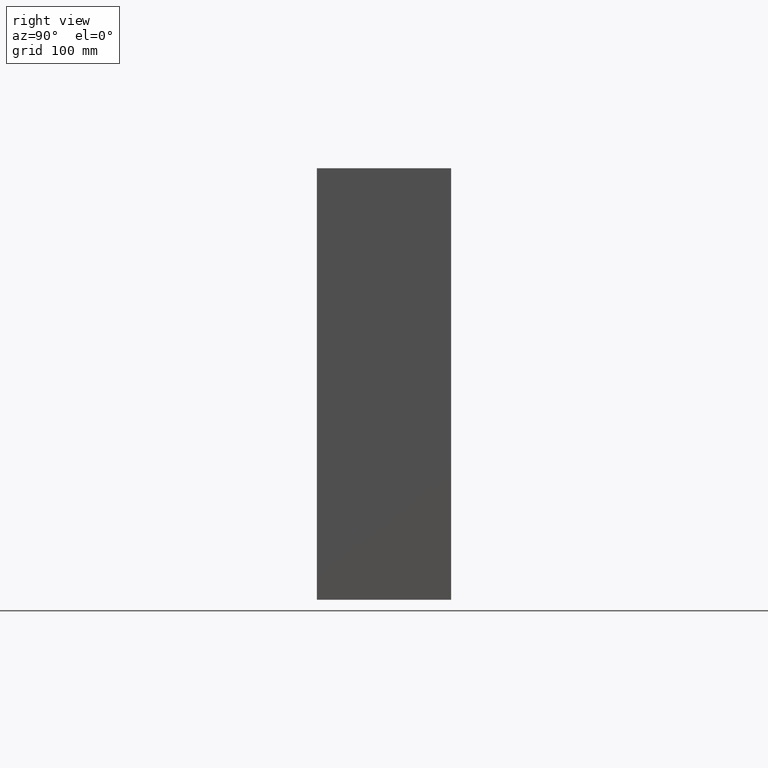
[diagram: clean part render]
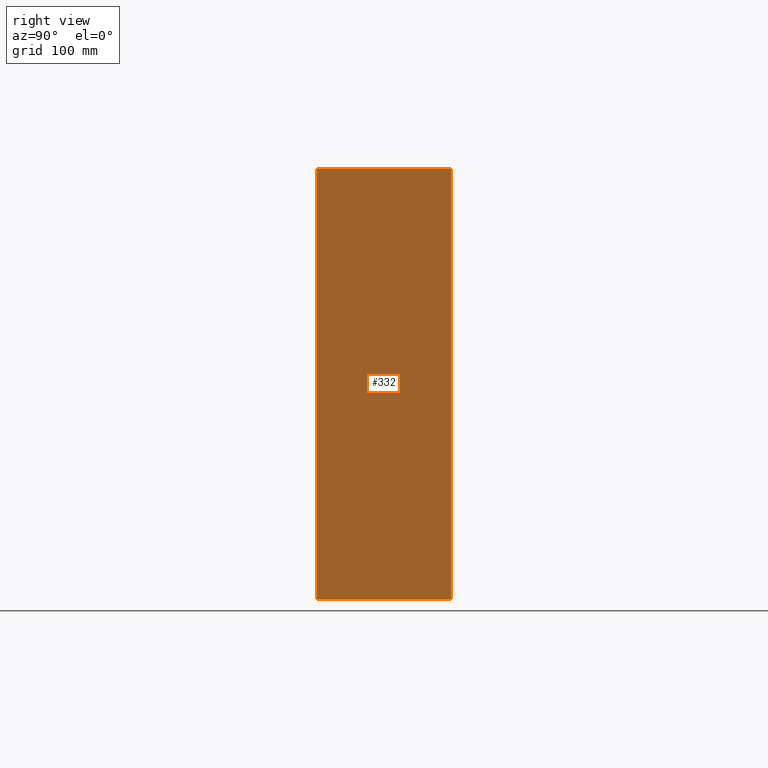
[diagram: same view with one face highlighted and labeled with its STEP entity id]
A machine part, right view. The second image highlights one B-rep face of the part: STEP entity #332.
In plain terms, the highlighted planar face has unit normal (-1, 0, 0).
Its self-contained STEP definition (entity closure, byte-faithful):
#48 = LINE ( 'NONE', #1043, #1123 ) ;
#59 = DIRECTION ( 'NONE',  ( 0.0000000000000000000, 0.0000000000000000000, -1.000000000000000000 ) ) ;
#73 = LINE ( 'NONE', #331, #737 ) ;
#85 = VERTEX_POINT ( 'NONE', #992 ) ;
#94 = VECTOR ( 'NONE', #861, 1000.000000000000000 ) ;
#184 = CARTESIAN_POINT ( 'NONE',  ( 600.0000000000000000, 0.0000000000000000000, 0.0000000000000000000 ) ) ;
#191 = ORIENTED_EDGE ( 'NONE', *, *, #493, .T. ) ;
#197 = CARTESIAN_POINT ( 'NONE',  ( 600.0000000000000000, 140.0000000000000000, -450.0000000000000000 ) ) ;
#228 = FACE_OUTER_BOUND ( 'NONE', #559, .T. ) ;
#265 = ORIENTED_EDGE ( 'NONE', *, *, #575, .T. ) ;
#267 = DIRECTION ( 'NONE',  ( 0.0000000000000000000, 0.0000000000000000000, 1.000000000000000000 ) ) ;
#331 = CARTESIAN_POINT ( 'NONE',  ( 600.0000000000000000, 140.0000000000000000, 0.0000000000000000000 ) ) ;
#332 = ADVANCED_FACE ( 'NONE', ( #228 ), #700, .F. ) ;
#335 = LINE ( 'NONE', #476, #567 ) ;
#340 = DIRECTION ( 'NONE',  ( 0.0000000000000000000, 0.0000000000000000000, -1.000000000000000000 ) ) ;
#394 = VERTEX_POINT ( 'NONE', #184 ) ;
#476 = CARTESIAN_POINT ( 'NONE',  ( 600.0000000000000000, 140.0000000000000000, 0.0000000000000000000 ) ) ;
#489 = EDGE_CURVE ( 'NONE', #921, #85, #523, .T. ) ;
#493 = EDGE_CURVE ( 'NONE', #497, #394, #73, .T. ) ;
#497 = VERTEX_POINT ( 'NONE', #950 ) ;
#523 = LINE ( 'NONE', #682, #94 ) ;
#559 = EDGE_LOOP ( 'NONE', ( #265, #1000, #1063, #191 ) ) ;
#567 = VECTOR ( 'NONE', #59, 1000.000000000000000 ) ;
#575 = EDGE_CURVE ( 'NONE', #394, #85, #48, .T. ) ;
#608 = CARTESIAN_POINT ( 'NONE',  ( 600.0000000000000000, 140.0000000000000000, 0.0000000000000000000 ) ) ;
#667 = AXIS2_PLACEMENT_3D ( 'NONE', #608, #786, #267 ) ;
#682 = CARTESIAN_POINT ( 'NONE',  ( 600.0000000000000000, 140.0000000000000000, -450.0000000000000000 ) ) ;
#700 = PLANE ( 'NONE',  #667 ) ;
#734 = EDGE_CURVE ( 'NONE', #497, #921, #335, .T. ) ;
#737 = VECTOR ( 'NONE', #1032, 1000.000000000000000 ) ;
#786 = DIRECTION ( 'NONE',  ( -1.000000000000000000, 0.0000000000000000000, 0.0000000000000000000 ) ) ;
#861 = DIRECTION ( 'NONE',  ( -0.0000000000000000000, -1.000000000000000000, -0.0000000000000000000 ) ) ;
#921 = VERTEX_POINT ( 'NONE', #197 ) ;
#950 = CARTESIAN_POINT ( 'NONE',  ( 600.0000000000000000, 140.0000000000000000, 0.0000000000000000000 ) ) ;
#992 = CARTESIAN_POINT ( 'NONE',  ( 600.0000000000000000, 0.0000000000000000000, -450.0000000000000000 ) ) ;
#1000 = ORIENTED_EDGE ( 'NONE', *, *, #489, .F. ) ;
#1032 = DIRECTION ( 'NONE',  ( -0.0000000000000000000, -1.000000000000000000, -0.0000000000000000000 ) ) ;
#1043 = CARTESIAN_POINT ( 'NONE',  ( 600.0000000000000000, 0.0000000000000000000, 0.0000000000000000000 ) ) ;
#1063 = ORIENTED_EDGE ( 'NONE', *, *, #734, .F. ) ;
#1123 = VECTOR ( 'NONE', #340, 1000.000000000000000 ) ;